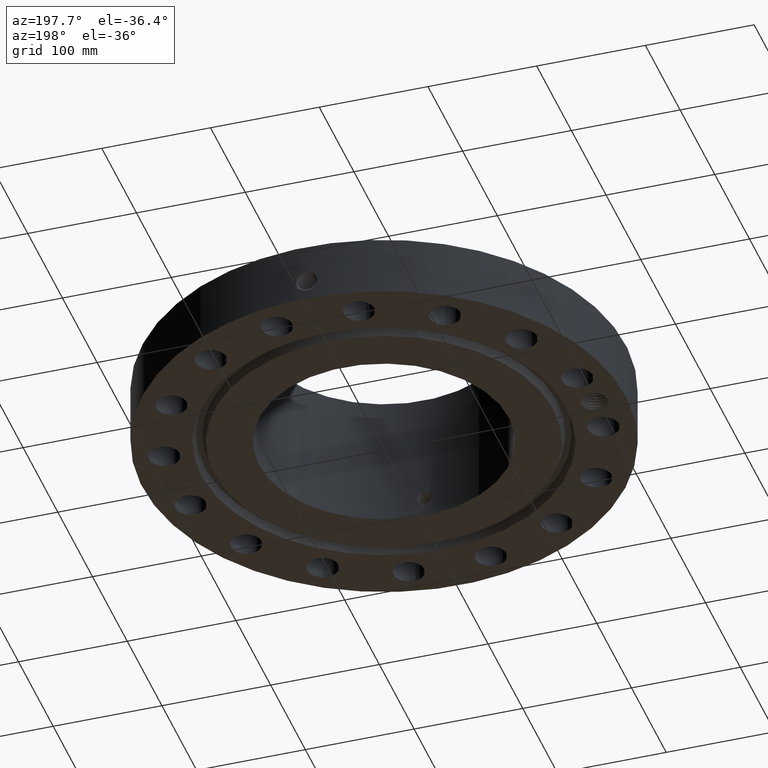
[diagram: clean part render]
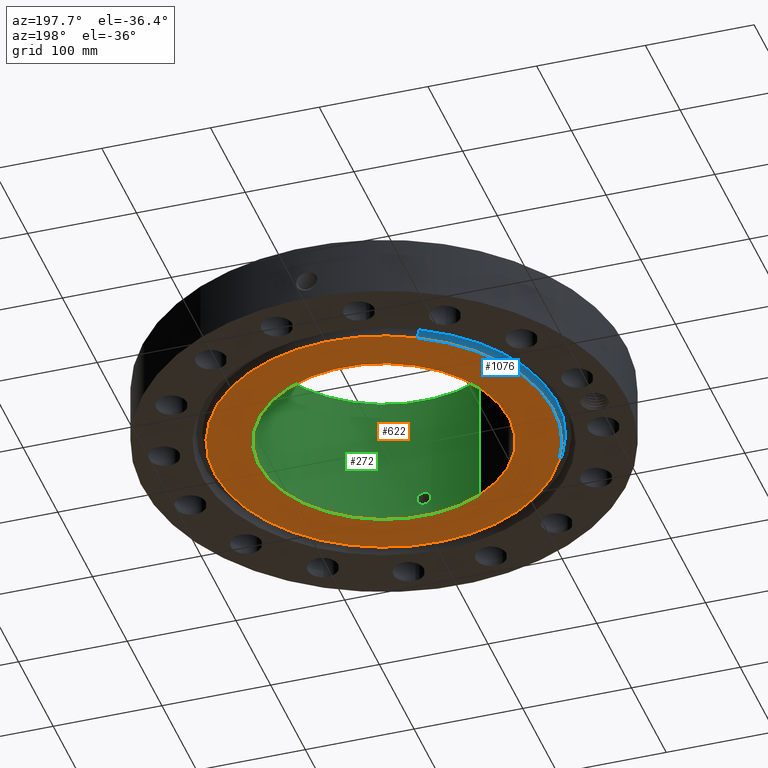
[diagram: same view with three faces highlighted in distinct colors, each labeled with its STEP entity id]
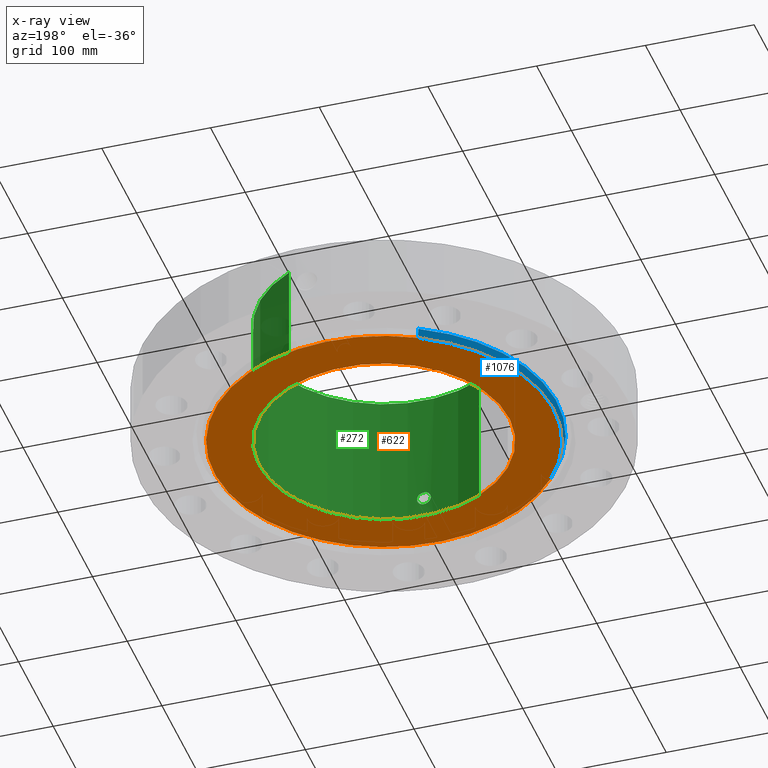
[diagram: x-ray of the same camera — body ghosted, the three highlighted faces saturated]
A machine part, auxiliary view with three faces highlighted in distinct colors.
The next image is the same camera in x-ray (body ghosted, the three faces saturated) — at least one of them is partly hidden behind the body in this view.
Their STEP definitions:

[orange] entity #622 — the highlighted planar face has unit normal (0, 0, -1).
#252=AXIS2_PLACEMENT_3D('Circle Axis2P3D',#250,#251,$) ;
#543=AXIS2_PLACEMENT_3D('Circle Axis2P3D',#541,#542,$) ;
#598=AXIS2_PLACEMENT_3D('Plane Axis2P3D',#595,#596,#597) ;
#602=AXIS2_PLACEMENT_3D('Circle Axis2P3D',#600,#601,$) ;
#611=AXIS2_PLACEMENT_3D('Circle Axis2P3D',#609,#610,$) ;
#247=CARTESIAN_POINT('Vertex',(2.17227711542,3.97632658794,-1.53857679003E-014)) ;
#250=CARTESIAN_POINT('Axis2P3D Location',(0.,0.,-1.56655091349E-014)) ;
#254=CARTESIAN_POINT('Vertex',(-2.17227711542,-3.97632658794,-1.53857679003E-014)) ;
#541=CARTESIAN_POINT('Axis2P3D Location',(0.,0.,-1.56655091349E-014)) ;
#595=CARTESIAN_POINT('Axis2P3D Location',(0.,4.53100000002,0.)) ;
#600=CARTESIAN_POINT('Axis2P3D Location',(5.59482469102E-016,5.59482469102E-016,0.)) ;
#604=CARTESIAN_POINT('Vertex',(-2.94391251981,5.38879572131,-1.48612530855E-016)) ;
#606=CARTESIAN_POINT('Vertex',(2.94391251981,-5.38879572131,0.)) ;
#609=CARTESIAN_POINT('Axis2P3D Location',(-1.67844740731E-015,1.1189649382E-015,0.)) ;
#251=DIRECTION('Axis2P3D Direction',(0.,0.,-0.0393700787402)) ;
#542=DIRECTION('Axis2P3D Direction',(0.,0.,-0.0393700787402)) ;
#596=DIRECTION('Axis2P3D Direction',(0.,0.,-0.0393700787402)) ;
#597=DIRECTION('Axis2P3D XDirection',(0.0393700787402,0.,0.)) ;
#601=DIRECTION('Axis2P3D Direction',(0.,0.,-0.0393700787402)) ;
#610=DIRECTION('Axis2P3D Direction',(0.,0.,-0.0393700787402)) ;
#615=ORIENTED_EDGE('',*,*,#608,.T.) ;
#616=ORIENTED_EDGE('',*,*,#613,.T.) ;
#619=ORIENTED_EDGE('',*,*,#256,.F.) ;
#620=ORIENTED_EDGE('',*,*,#545,.F.) ;
#621=FACE_BOUND('',#618,.T.) ;
#622=ADVANCED_FACE('PartBody',(#617,#621),#599,.T.) ;
#253=CIRCLE('generated circle',#252,4.53100000002) ;
#544=CIRCLE('generated circle',#543,4.53100000002) ;
#603=CIRCLE('generated circle',#602,6.14050000002) ;
#612=CIRCLE('generated circle',#611,6.14050000002) ;
#256=EDGE_CURVE('',#248,#255,#253,.T.) ;
#545=EDGE_CURVE('',#255,#248,#544,.T.) ;
#608=EDGE_CURVE('',#605,#607,#603,.T.) ;
#613=EDGE_CURVE('',#607,#605,#612,.T.) ;
#614=EDGE_LOOP('',(#615,#616)) ;
#618=EDGE_LOOP('',(#619,#620)) ;
#617=FACE_OUTER_BOUND('',#614,.T.) ;
#599=PLANE('',#598) ;
#248=VERTEX_POINT('',#247) ;
#255=VERTEX_POINT('',#254) ;
#605=VERTEX_POINT('',#604) ;
#607=VERTEX_POINT('',#606) ;

[blue] entity #1076 — the highlighted conical surface has half-angle 23 deg.
#611=AXIS2_PLACEMENT_3D('Circle Axis2P3D',#609,#610,$) ;
#1037=AXIS2_PLACEMENT_3D('Cone Axis2P3D',#1034,#1035,#1036) ;
#1067=AXIS2_PLACEMENT_3D('Circle Axis2P3D',#1065,#1066,$) ;
#604=CARTESIAN_POINT('Vertex',(-2.94391251981,5.38879572131,-1.48612530855E-016)) ;
#606=CARTESIAN_POINT('Vertex',(2.94391251981,-5.38879572131,0.)) ;
#609=CARTESIAN_POINT('Axis2P3D Location',(-1.67844740731E-015,1.1189649382E-015,0.)) ;
#1034=CARTESIAN_POINT('Axis2P3D Location',(0.,0.,-0.0600000000002)) ;
#1039=CARTESIAN_POINT('Line Origine',(-2.97383908161,5.44357592523,0.147056332492)) ;
#1043=CARTESIAN_POINT('Vertex',(-3.0037656434,5.49835612915,0.294112664984)) ;
#1050=CARTESIAN_POINT('Vertex',(3.0037656434,-5.49835612915,0.294112664984)) ;
#1053=CARTESIAN_POINT('Line Origine',(2.97383908161,-5.44357592523,0.147056332492)) ;
#1065=CARTESIAN_POINT('Axis2P3D Location',(0.,0.,0.294112664984)) ;
#610=DIRECTION('Axis2P3D Direction',(0.,0.,-0.0393700787402)) ;
#1035=DIRECTION('Axis2P3D Direction',(0.,0.,0.0393700787402)) ;
#1036=DIRECTION('Axis2P3D XDirection',(-0.0188750212049,0.0345504945626,0.)) ;
#1040=DIRECTION('Vector Direction',(-0.00737505833565,0.0134999537303,0.0362403485611)) ;
#1054=DIRECTION('Vector Direction',(0.00737505833565,-0.0134999537303,0.0362403485611)) ;
#1066=DIRECTION('Axis2P3D Direction',(0.,0.,0.0393700787402)) ;
#1041=VECTOR('Line Direction',#1040,0.0393700787402) ;
#1055=VECTOR('Line Direction',#1054,0.0393700787402) ;
#1071=ORIENTED_EDGE('',*,*,#1057,.F.) ;
#1072=ORIENTED_EDGE('',*,*,#1069,.F.) ;
#1073=ORIENTED_EDGE('',*,*,#1045,.T.) ;
#1074=ORIENTED_EDGE('',*,*,#613,.F.) ;
#1076=ADVANCED_FACE('PartBody',(#1075),#1038,.T.) ;
#612=CIRCLE('generated circle',#611,6.14050000002) ;
#1068=CIRCLE('generated circle',#1067,6.26534341944) ;
#1038=CONICAL_SURFACE('Cone',#1037,6.11503151105,0.401425727959) ;
#613=EDGE_CURVE('',#607,#605,#612,.T.) ;
#1045=EDGE_CURVE('',#1044,#605,#1042,.F.) ;
#1057=EDGE_CURVE('',#1051,#607,#1056,.F.) ;
#1069=EDGE_CURVE('',#1044,#1051,#1068,.T.) ;
#1070=EDGE_LOOP('',(#1071,#1072,#1073,#1074)) ;
#1075=FACE_OUTER_BOUND('',#1070,.T.) ;
#1042=LINE('Line',#1039,#1041) ;
#1056=LINE('Line',#1053,#1055) ;
#605=VERTEX_POINT('',#604) ;
#607=VERTEX_POINT('',#606) ;
#1044=VERTEX_POINT('',#1043) ;
#1051=VERTEX_POINT('',#1050) ;

[green] entity #272 — the highlighted cylindrical surface (partial cylindrical patch) has radius 115.087 mm, axis along (0, 0, -1).
#232=AXIS2_PLACEMENT_3D('Cylinder Axis2P3D',#229,#230,#231) ;
#236=AXIS2_PLACEMENT_3D('Circle Axis2P3D',#234,#235,$) ;
#252=AXIS2_PLACEMENT_3D('Circle Axis2P3D',#250,#251,$) ;
#81=CARTESIAN_POINT('Control Point',(0.219395640473,-4.52568520261,0.630143615351)) ;
#82=CARTESIAN_POINT('Control Point',(0.20692179747,-4.52628990812,0.607310398892)) ;
#83=CARTESIAN_POINT('Control Point',(0.191478669695,-4.52699547993,0.586101981417)) ;
#84=CARTESIAN_POINT('Control Point',(0.173346286319,-4.52774738621,0.567030970395)) ;
#85=CARTESIAN_POINT('Control Point',(0.112144372448,-4.52992190944,0.517556396567)) ;
#86=CARTESIAN_POINT('Control Point',(0.0349953005905,-4.53133467934,0.494029605577)) ;
#87=CARTESIAN_POINT('Control Point',(-0.0195461126578,-4.53144042438,0.492387757327)) ;
#88=CARTESIAN_POINT('Control Point',(-0.124127105134,-4.52988593931,0.517522687186)) ;
#89=CARTESIAN_POINT('Control Point',(-0.203169599027,-4.52666735595,0.5904175988)) ;
#90=CARTESIAN_POINT('Control Point',(-0.23215095162,-4.52508220192,0.636623107943)) ;
#91=CARTESIAN_POINT('Control Point',(-0.255830505973,-4.52377648309,0.714782854797)) ;
#92=CARTESIAN_POINT('Control Point',(-0.248300480799,-4.52419134129,0.794180540624)) ;
#93=CARTESIAN_POINT('Control Point',(-0.242066292139,-4.5245398885,0.820771359678)) ;
#94=CARTESIAN_POINT('Control Point',(-0.232326354238,-4.52505834897,0.846186871876)) ;
#95=CARTESIAN_POINT('Control Point',(-0.219395640473,-4.52568520261,0.869856384655)) ;
#96=CARTESIAN_POINT('Vertex',(0.219395640473,-4.52568520261,0.630143615351)) ;
#98=CARTESIAN_POINT('Vertex',(-0.219395640473,-4.52568520261,0.869856384655)) ;
#206=CARTESIAN_POINT('Control Point',(-0.219395640473,-4.52568520261,0.869856384655)) ;
#207=CARTESIAN_POINT('Control Point',(-0.206921797477,-4.52628990812,0.892689601102)) ;
#208=CARTESIAN_POINT('Control Point',(-0.191478669711,-4.52699547993,0.913898018567)) ;
#209=CARTESIAN_POINT('Control Point',(-0.173346286298,-4.52774738621,0.932969029629)) ;
#210=CARTESIAN_POINT('Control Point',(-0.112144372433,-4.52992190944,0.982443603444)) ;
#211=CARTESIAN_POINT('Control Point',(-0.0349953005882,-4.53133467934,1.00597039443)) ;
#212=CARTESIAN_POINT('Control Point',(0.0195461126543,-4.53144042438,1.00761224268)) ;
#213=CARTESIAN_POINT('Control Point',(0.12412710514,-4.5298859393,0.982477312819)) ;
#214=CARTESIAN_POINT('Control Point',(0.203169599038,-4.52666735595,0.909582401196)) ;
#215=CARTESIAN_POINT('Control Point',(0.232150951616,-4.52508220192,0.863376892079)) ;
#216=CARTESIAN_POINT('Control Point',(0.25583050598,-4.52377648309,0.785217145197)) ;
#217=CARTESIAN_POINT('Control Point',(0.248300480795,-4.52419134129,0.705819459343)) ;
#218=CARTESIAN_POINT('Control Point',(0.242066292153,-4.5245398885,0.679228640364)) ;
#219=CARTESIAN_POINT('Control Point',(0.232326354247,-4.52505834897,0.653813128147)) ;
#220=CARTESIAN_POINT('Control Point',(0.219395640473,-4.52568520261,0.630143615351)) ;
#229=CARTESIAN_POINT('Axis2P3D Location',(0.,0.,2.46650000001)) ;
#234=CARTESIAN_POINT('Axis2P3D Location',(0.,0.,4.93300000002)) ;
#238=CARTESIAN_POINT('Vertex',(2.17227711542,3.97632658794,4.93300000002)) ;
#240=CARTESIAN_POINT('Vertex',(-2.17227711542,-3.97632658794,4.93300000002)) ;
#243=CARTESIAN_POINT('Line Origine',(2.17227711542,3.97632658794,2.46650000001)) ;
#247=CARTESIAN_POINT('Vertex',(2.17227711542,3.97632658794,-1.53857679003E-014)) ;
#250=CARTESIAN_POINT('Axis2P3D Location',(0.,0.,-1.56655091349E-014)) ;
#254=CARTESIAN_POINT('Vertex',(-2.17227711542,-3.97632658794,-1.53857679003E-014)) ;
#257=CARTESIAN_POINT('Line Origine',(-2.17227711542,-3.97632658794,2.46650000001)) ;
#230=DIRECTION('Axis2P3D Direction',(0.,0.,-0.0393700787402)) ;
#231=DIRECTION('Axis2P3D XDirection',(-0.0188750212049,-0.0345504945626,0.)) ;
#235=DIRECTION('Axis2P3D Direction',(0.,0.,-0.0393700787402)) ;
#244=DIRECTION('Vector Direction',(0.,0.,-0.0393700787402)) ;
#251=DIRECTION('Axis2P3D Direction',(0.,0.,-0.0393700787402)) ;
#258=DIRECTION('Vector Direction',(0.,0.,-0.0393700787402)) ;
#245=VECTOR('Line Direction',#244,0.0393700787402) ;
#259=VECTOR('Line Direction',#258,0.0393700787402) ;
#263=ORIENTED_EDGE('',*,*,#242,.F.) ;
#264=ORIENTED_EDGE('',*,*,#249,.T.) ;
#265=ORIENTED_EDGE('',*,*,#256,.T.) ;
#266=ORIENTED_EDGE('',*,*,#261,.F.) ;
#269=ORIENTED_EDGE('',*,*,#100,.F.) ;
#270=ORIENTED_EDGE('',*,*,#221,.F.) ;
#271=FACE_BOUND('',#268,.T.) ;
#272=ADVANCED_FACE('PartBody',(#267,#271),#233,.F.) ;
#80=B_SPLINE_CURVE_WITH_KNOTS('',5,(#81,#82,#83,#84,#85,#86,#87,#88,#89,#90,#91,#92,#93,#94,#95),.UNSPECIFIED.,.F.,.U.,(6,3,3,3,6),(0.,4.67428396204,14.0218472775,23.3718191624,28.2173048681),.UNSPECIFIED.) ;
#205=B_SPLINE_CURVE_WITH_KNOTS('',5,(#206,#207,#208,#209,#210,#211,#212,#213,#214,#215,#216,#217,#218,#219,#220),.UNSPECIFIED.,.F.,.U.,(6,3,3,3,6),(0.,4.67428395953,14.0218472752,23.3718191615,28.2173048707),.UNSPECIFIED.) ;
#237=CIRCLE('generated circle',#236,4.53100000002) ;
#253=CIRCLE('generated circle',#252,4.53100000002) ;
#233=CYLINDRICAL_SURFACE('generated cylinder',#232,4.53100000002) ;
#100=EDGE_CURVE('',#97,#99,#80,.T.) ;
#221=EDGE_CURVE('',#99,#97,#205,.T.) ;
#242=EDGE_CURVE('',#239,#241,#237,.T.) ;
#249=EDGE_CURVE('',#239,#248,#246,.T.) ;
#256=EDGE_CURVE('',#248,#255,#253,.T.) ;
#261=EDGE_CURVE('',#241,#255,#260,.T.) ;
#262=EDGE_LOOP('',(#263,#264,#265,#266)) ;
#268=EDGE_LOOP('',(#269,#270)) ;
#267=FACE_OUTER_BOUND('',#262,.T.) ;
#246=LINE('Line',#243,#245) ;
#260=LINE('Line',#257,#259) ;
#97=VERTEX_POINT('',#96) ;
#99=VERTEX_POINT('',#98) ;
#239=VERTEX_POINT('',#238) ;
#241=VERTEX_POINT('',#240) ;
#248=VERTEX_POINT('',#247) ;
#255=VERTEX_POINT('',#254) ;